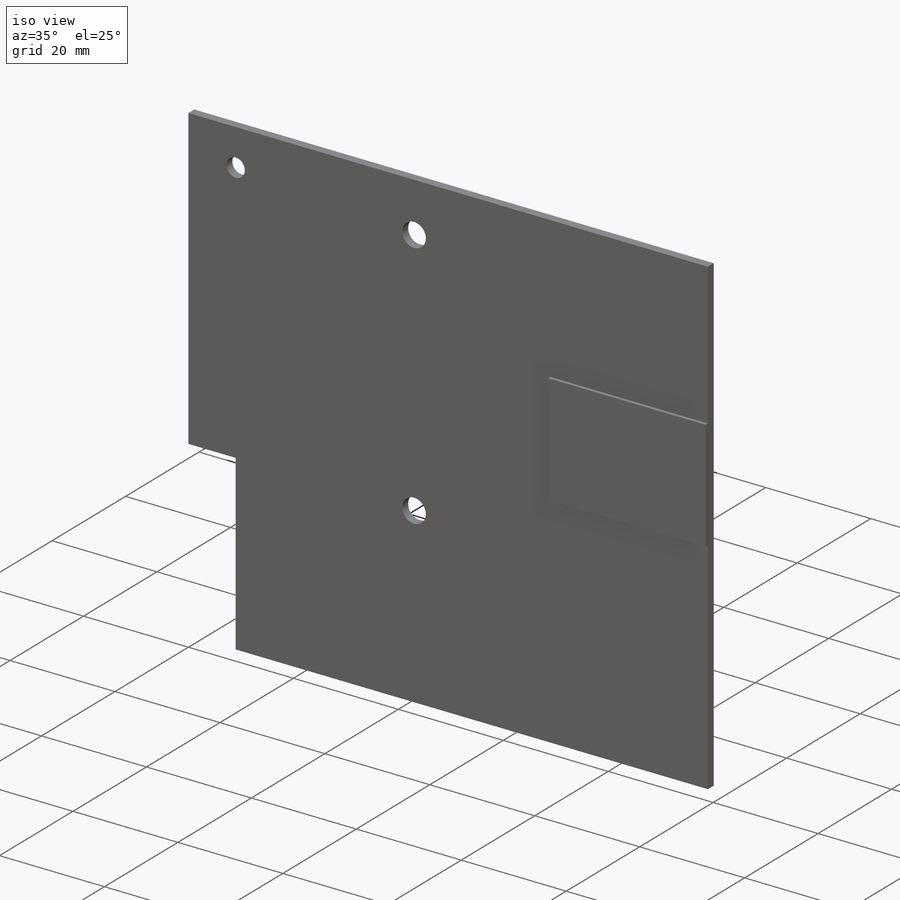
[diagram: iso view]
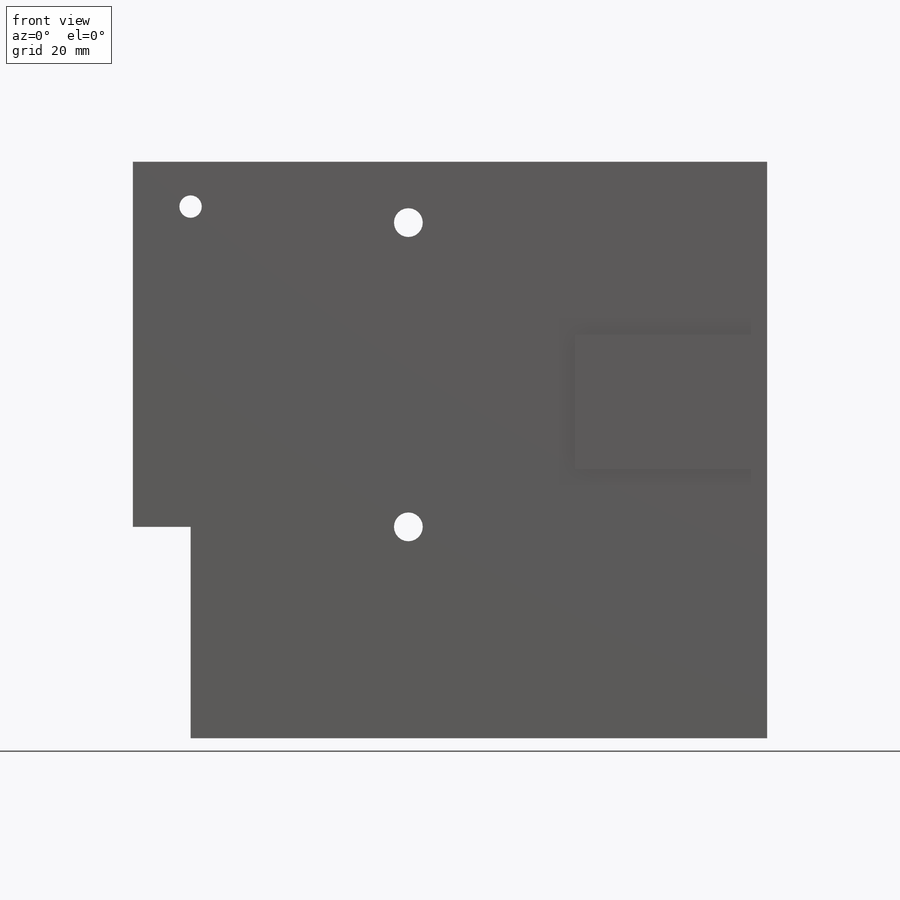
[diagram: front view]
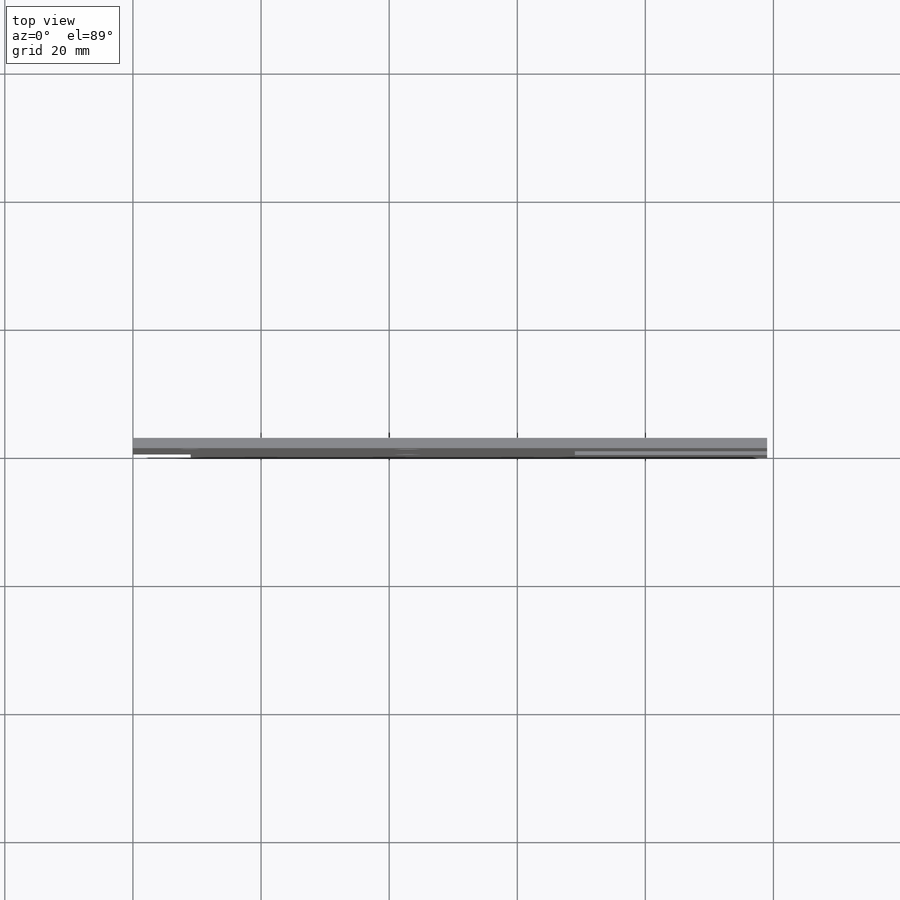
[diagram: top view]
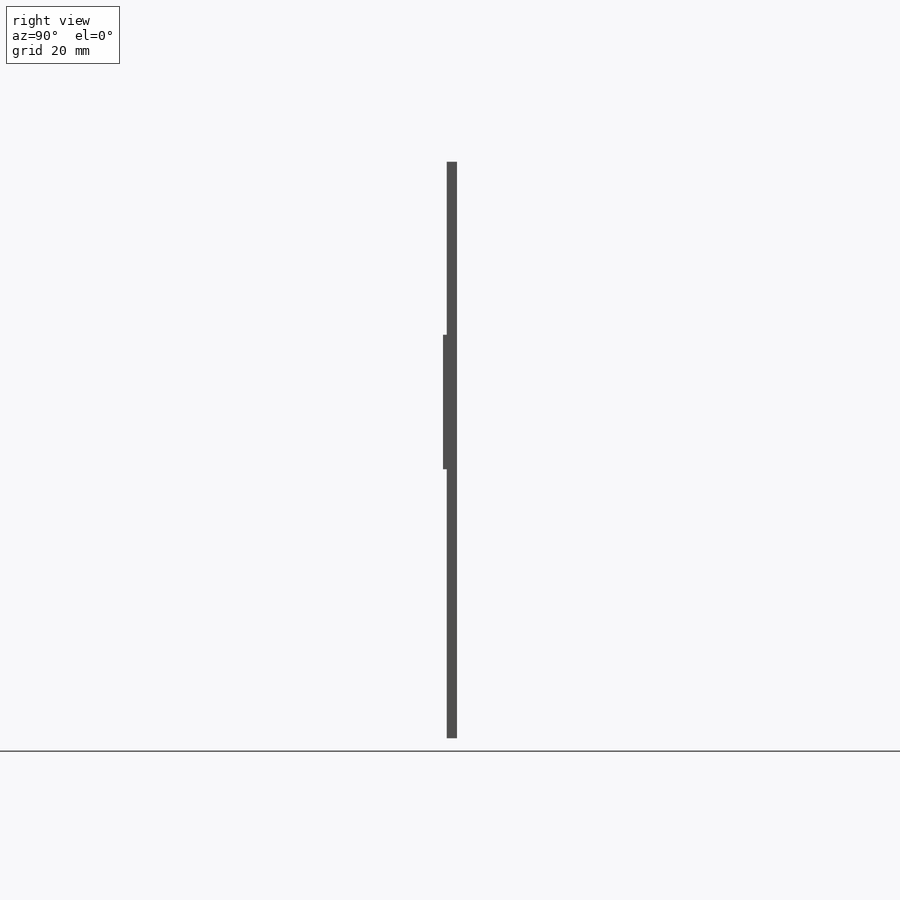
[diagram: right view]
SOLIDWORKS PART (.sldprt)
format: sldprt  version: not decoded by parser v0  size: 166,912 bytes
history: native  units: mm
features: sketch x3, extrude x2, material x1, cut_extrude x1 (+12 scaffold rows collapsed)
feature tree (19):
  scaffold x12  (default folders/planes/origin — collapsed)
  material  "ABS"
  sketch  "Sketch1"  dims[D1=99.0mm D2=90.0mm D3=0.0mm D4=0.0mm D5=33.0mm D6=9.0mm]
  extrude  "BoardBase"  Depth=1.6mm
  sketch  "Sketch2"  dims[c1.D1=3.5mm c1.D3=3.5mm c1.D4=4.5mm c1.D5=4.5mm c1.D2=83.0mm c2.D3=9.0mm c2.D6=33.0mm c2.D7=47.5mm c2.D8=43.0mm c2.D9=43.0mm]
  cut_extrude  "Existing Holes"  [1 undecoded]
  sketch  "Sketch3"  dims[D1=63.0mm D2=42.0mm D3=30.0mm]
  extrude  "'Free' area"  Depth=0.6mm
decode coverage: 5 of 6 modeling features carry decoded parameters
note: 1 parameter value undecoded
note: suppression state not decoded; provenance and decode notes live in map.json
